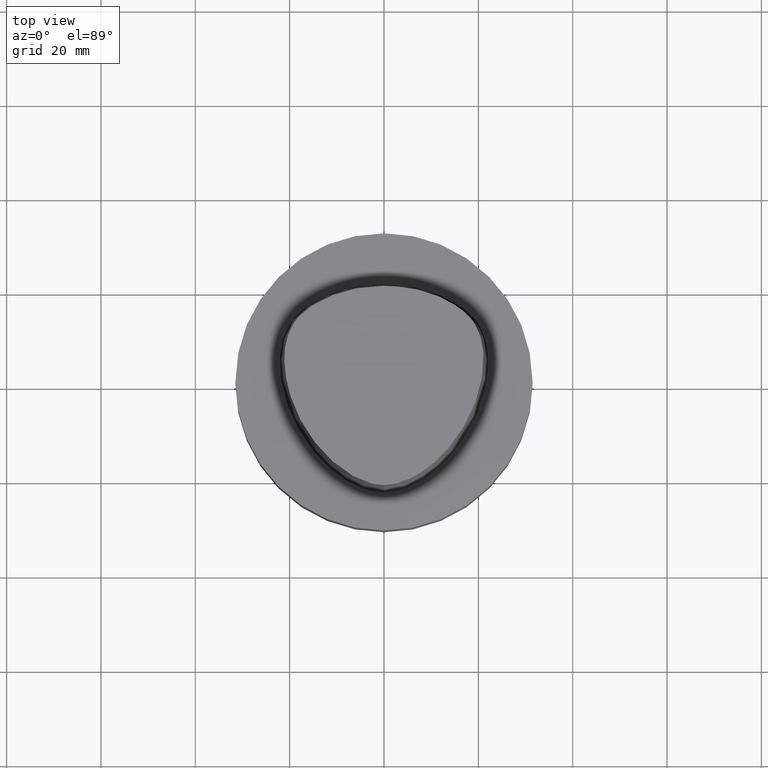
[diagram: clean part render]
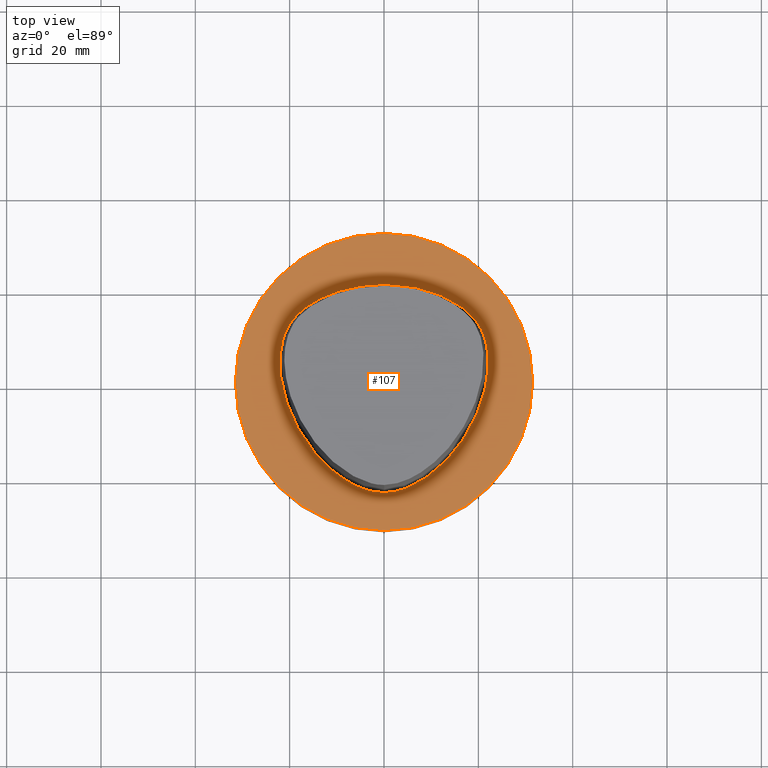
[diagram: same view with one face highlighted and labeled with its STEP entity id]
A machine part, top view. The second image highlights one B-rep face of the part: STEP entity #107.
In plain terms, the highlighted planar face has unit normal (-0, -0, 1).
Its self-contained STEP definition (entity closure, byte-faithful):
#69=EDGE_CURVE('Unnamed[1]',#158,#158,#159,.T.);
#85=EDGE_CURVE('Unnamed[1]',#161,#131,#183,.T.);
#87=EDGE_CURVE('Unnamed[1]',#131,#164,#185,.T.);
#91=EDGE_CURVE('Unnamed[1]',#164,#161,#189,.T.);
#107=ADVANCED_FACE('Unnamed[1]',(#211,#212),#213,.T.);
#131=VERTEX_POINT('',#230);
#158=VERTEX_POINT('',#346);
#159=CIRCLE('',#347,31.5);
#161=VERTEX_POINT('',#350);
#164=VERTEX_POINT('',#355);
#183=B_SPLINE_CURVE_WITH_KNOTS('',3,(#380,#381,#382,#383,#384,#385,#386,#387,#388,#389,#390,#391,#392,#393,#394,#395,#396),.UNSPECIFIED.,.F.,.F.,(4,1,1,1,1,1,1,1,1,1,1,1,1,1,4),(-13.2302678617486,-12.816821991069,-12.4033761203893,-11.9899302497097,-11.57648437903,-11.1630385083504,-10.9563155730106,-10.7495926376707,-10.3361467669911,-9.92270089631145,-9.09580915495216,-8.26891741359287,-7.44202567223358,-7.02857980155394,-6.6151339308743),.UNSPECIFIED.);
#185=B_SPLINE_CURVE_WITH_KNOTS('',3,(#399,#400,#401,#402,#403,#404,#405,#406,#407,#408,#409,#410,#411,#412,#413,#414,#415,#416),.UNSPECIFIED.,.F.,.F.,(4,1,1,1,1,1,1,1,1,2,1,1,1,1,4),(-6.6151339308743,-6.20168806019465,-5.78824218951501,-5.37479631883537,-4.96135044815572,-4.13445870679644,-3.30756696543715,-2.89412109475751,-2.48067522407786,-2.06722935339822,-1.65378348271857,-1.24033761203893,-0.826891741359287,-0.413445870679644,0.0),.UNSPECIFIED.);
#189=CIRCLE('',#437,0.949936168436318);
#211=FACE_BOUND('',#465,.T.);
#212=FACE_OUTER_BOUND('',#466,.T.);
#213=PLANE('',#467);
#230=CARTESIAN_POINT('',(0.04359356758149,-23.4691235068931,7.78075697532443E-032));
#346=CARTESIAN_POINT('',(-3.88267476788467E-031,31.5,3.85763741731416E-015));
#347=AXIS2_PLACEMENT_3D('',#574,#575,#576);
#350=CARTESIAN_POINT('',(0.044682985379347,20.6765087343109,1.61778115328528E-031));
#355=CARTESIAN_POINT('',(-0.045171994691285,20.6766009553285,1.6755590516169E-031));
#380=CARTESIAN_POINT('',(0.044682985379347,20.6765087343109,1.61778115328528E-031));
#381=CARTESIAN_POINT('',(1.42379272427753,20.6097915814392,8.62816615085482E-032));
#382=CARTESIAN_POINT('',(4.2230955003445,20.4837538303966,1.4791141972894E-031));
#383=CARTESIAN_POINT('',(8.47220762821777,19.6890432607088,9.86076131526265E-032));
#384=CARTESIAN_POINT('',(12.5141247708253,18.2434968480404,0.0));
#385=CARTESIAN_POINT('',(16.3038624872874,16.1734192182143,1.97215226305253E-031));
#386=CARTESIAN_POINT('',(19.1446913988473,13.7036723639434,-1.97215226305253E-031));
#387=CARTESIAN_POINT('',(20.7319894342149,11.1014620996188,0.0));
#388=CARTESIAN_POINT('',(21.7831756505763,8.28099229708081,-1.97215226305253E-031));
#389=CARTESIAN_POINT('',(22.2258240701438,4.60865440596506,0.0));
#390=CARTESIAN_POINT('',(21.7436130080666,-1.11326526354485,0.0));
#391=CARTESIAN_POINT('',(19.5519487660502,-7.95432366164584,0.0));
#392=CARTESIAN_POINT('',(14.9574167123838,-15.2089785567293,0.0));
#393=CARTESIAN_POINT('',(9.66840283021945,-20.0827414369705,-9.86076131526265E-032));
#394=CARTESIAN_POINT('',(4.51628650521788,-22.7946374572188,-9.86076131526265E-032));
#395=CARTESIAN_POINT('',(1.55867251738073,-23.4612972770043,-1.23259516440783E-032));
#396=CARTESIAN_POINT('',(0.04359356758149,-23.4691235068931,7.78075697532443E-032));
#399=CARTESIAN_POINT('',(0.04359356758149,-23.4691235068931,7.78075697532443E-032));
#400=CARTESIAN_POINT('',(-1.4714994713963,-23.4767895315797,2.46519032881566E-032));
#401=CARTESIAN_POINT('',(-4.43923476371401,-22.821149804767,-4.93038065763132E-032));
#402=CARTESIAN_POINT('',(-8.35043230079961,-20.8000751253325,-9.86076131526265E-032));
#403=CARTESIAN_POINT('',(-11.744900222602,-18.1556117874078,-1.97215226305253E-031));
#404=CARTESIAN_POINT('',(-15.6989602501314,-14.0406306929147,-1.97215226305253E-031));
#405=CARTESIAN_POINT('',(-19.5352875070682,-8.00624990770787,1.97215226305253E-031));
#406=CARTESIAN_POINT('',(-21.7205626190491,-1.16081708945282,0.0));
#407=CARTESIAN_POINT('',(-22.2486616783342,4.54965558738736,0.0));
#408=CARTESIAN_POINT('',(-21.6646421256468,9.00229539124618,0.0));
#409=CARTESIAN_POINT('',(-20.3945635471922,11.7780544971003,0.0));
#410=CARTESIAN_POINT('',(-18.5925528034471,14.1980602922581,0.0));
#411=CARTESIAN_POINT('',(-16.3226584122258,16.1777748720707,0.0));
#412=CARTESIAN_POINT('',(-12.5076407874579,18.2524201541303,9.86076131526265E-032));
#413=CARTESIAN_POINT('',(-8.46776192107786,19.679114377952,9.86076131526265E-032));
#414=CARTESIAN_POINT('',(-4.23043497193604,20.487781597334,1.97215226305253E-031));
#415=CARTESIAN_POINT('',(-1.42313094248379,20.6127745766442,1.10933564796705E-031));
#416=CARTESIAN_POINT('',(-0.045171994691285,20.6766009553285,1.6755590516169E-031));
#437=AXIS2_PLACEMENT_3D('',#597,#598,#599);
#465=EDGE_LOOP('',(#625,#626,#627));
#466=EDGE_LOOP('',(#628));
#467=AXIS2_PLACEMENT_3D('',#629,#630,#631);
#574=CARTESIAN_POINT('',(0.0,0.0,0.0));
#575=DIRECTION('',(6.12323399573677E-017,1.22464679914735E-016,-1.0));
#576=DIRECTION('',(-1.23259516440783E-032,1.0,1.22464679914735E-016));
#597=CARTESIAN_POINT('',(-0.001218547003662,19.7276821925089,1.97178046083078E-015));
#598=DIRECTION('',(6.12323399573677E-017,1.22464679914735E-016,-1.0));
#599=DIRECTION('',(-0.046269895968506,0.998928974816059,1.19500303158668E-016));
#625=ORIENTED_EDGE('',*,*,#85,.T.);
#626=ORIENTED_EDGE('',*,*,#87,.T.);
#627=ORIENTED_EDGE('',*,*,#91,.T.);
#628=ORIENTED_EDGE('',*,*,#69,.F.);
#629=CARTESIAN_POINT('',(-1.94133738394233E-031,15.75,1.92881870865708E-015));
#630=DIRECTION('',(-6.12323399573677E-017,-1.22464679914735E-016,1.0));
#631=DIRECTION('',(1.23259516440783E-032,-1.0,-1.22464679914735E-016));